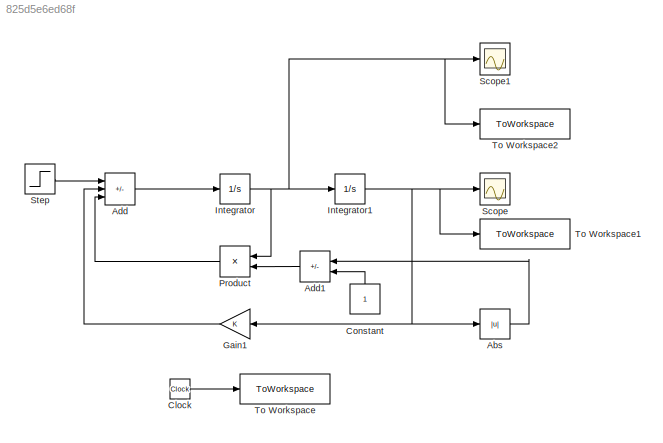
MODEL slx_825d5e6ed68f
KIND model
CONFIG AbsTol = auto
CONFIG EnableMultiTasking = off
CONFIG FixedStep = auto
CONFIG MaxStep = auto
CONFIG MinStep = auto
CONFIG RelTol = 1e-3
CONFIG SampleTimeConstraint = Unconstrained
CONFIG SolverName = VariableStepAuto
CONFIG StartTime = 0.0
CONFIG StopTime = 100
BLOCK [Abs] Abs
  SaturateOnIntegerOverflow = off
BLOCK [Sum] Add
  IconShape = rectangular
  Inputs = +--
BLOCK [Sum] Add1
  IconShape = rectangular
  Inputs = +-
  NameLocation = top
BLOCK [Clock] Clock
BLOCK [Constant] Constant
  NameLocation = right
BLOCK [Gain] Gain1
  NameLocation = top
BLOCK [Integrator] Integrator
BLOCK [Integrator] Integrator1
  InitialCondition = 5
BLOCK [Product] Product
  NameLocation = top
BLOCK [Scope] Scope
  Floating = off
  NumInputPorts = 1
  ScopeSpecificationString = Simulink.scopes.TimeScopeBlockCfg('CurrentConfiguration', extmgr.ConfigurationSet(extmgr.Configuration('Core','General UI',true),extmgr.Configuration('Core','Source UI',true),extmgr.Configuration('Sources','WiredSimulink',true),extmgr.Configuration('Visuals','Time Domain',true,'SerializedDisplays',{struct('MinYLimReal','-3.4326','MaxYLimReal','5.93696','YLabelReal','','MinYLimMag','0.00000','MaxYL...<+1448ch>
BLOCK [Scope] Scope1
  Floating = off
  NumInputPorts = 1
  ScopeSpecificationString = Simulink.scopes.TimeScopeBlockCfg('CurrentConfiguration', extmgr.ConfigurationSet(extmgr.Configuration('Core','General UI',true),extmgr.Configuration('Core','Source UI',true),extmgr.Configuration('Sources','WiredSimulink',true,'DataLoggingVariableName','ScopeData1'),extmgr.Configuration('Visuals','Time Domain',true,'SerializedDisplays',{struct('MinYLimReal','-7.33037','MaxYLimReal','5.59377','YLab...<+1488ch>
BLOCK [Step] Step
  After = 0
  SampleTime = 0
BLOCK [ToWorkspace] To Workspace
  FixptAsFi = on
  MaxDataPoints = inf
  SampleTime = 0.1
  VariableName = t
BLOCK [ToWorkspace] To Workspace1
  FixptAsFi = on
  MaxDataPoints = inf
  SampleTime = 0.1
  VariableName = x
BLOCK [ToWorkspace] To Workspace2
  FixptAsFi = on
  MaxDataPoints = inf
  SampleTime = 0.1
  VariableName = dx
LINE Abs:1 -> Add1:1
LINE Add1:1 -> Product:2
LINE Add:1 -> Integrator:1
LINE Clock:1 -> To Workspace:1
LINE Constant:1 -> Add1:2
LINE Gain1:1 -> Add:2
NET Integrator1:1 -> Abs:1, Gain1:1, Scope:1, To Workspace1:1
NET Integrator:1 -> Integrator1:1, Product:1, Scope1:1, To Workspace2:1
LINE Product:1 -> Add:3
LINE Step:1 -> Add:1
note: NET lines group one-source signal fan-out (src -> all destinations, sorted); 1:1 wires keep LINE
